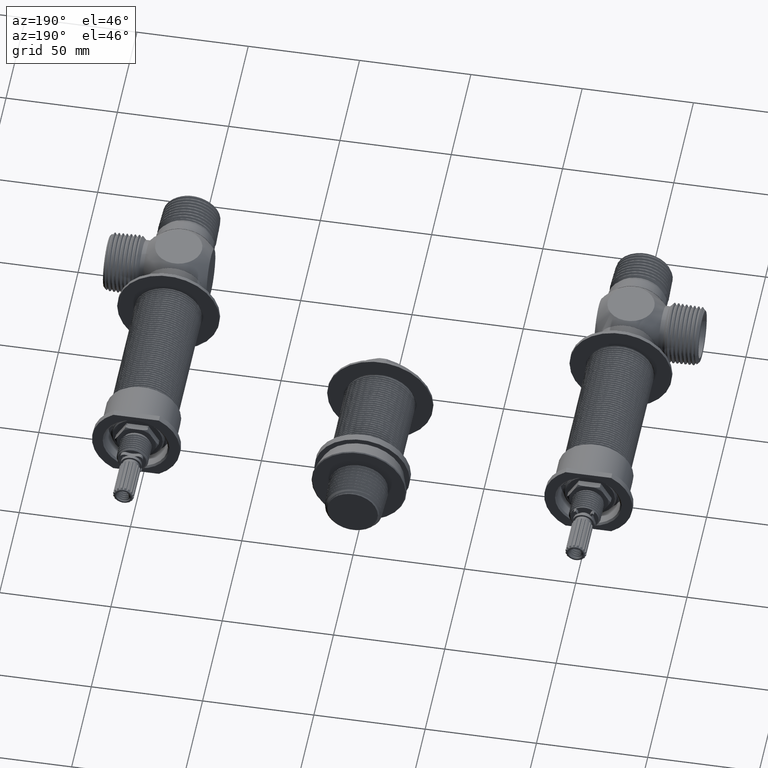
[diagram: clean part render]
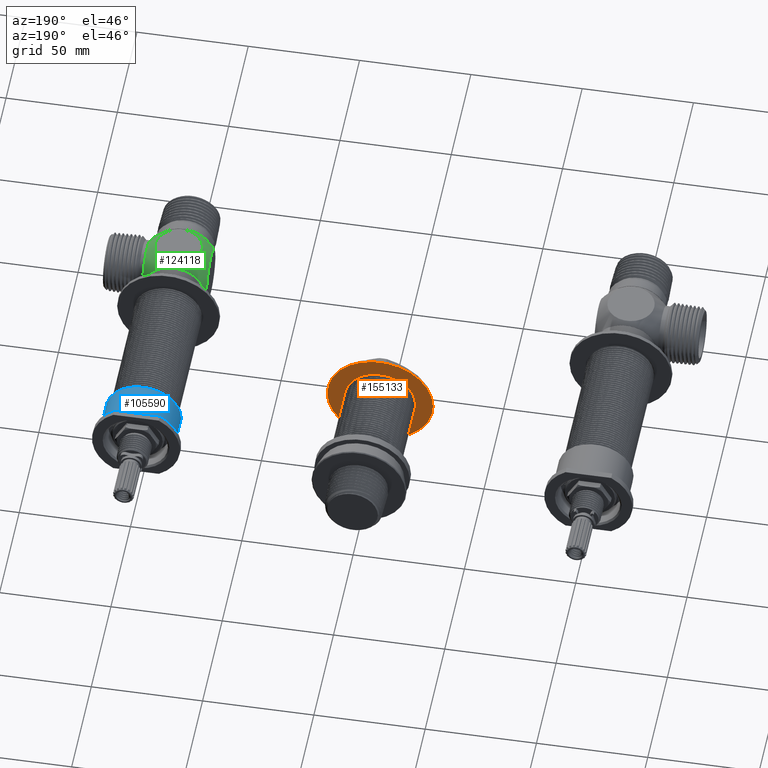
[diagram: same view with three faces highlighted in distinct colors, each labeled with its STEP entity id]
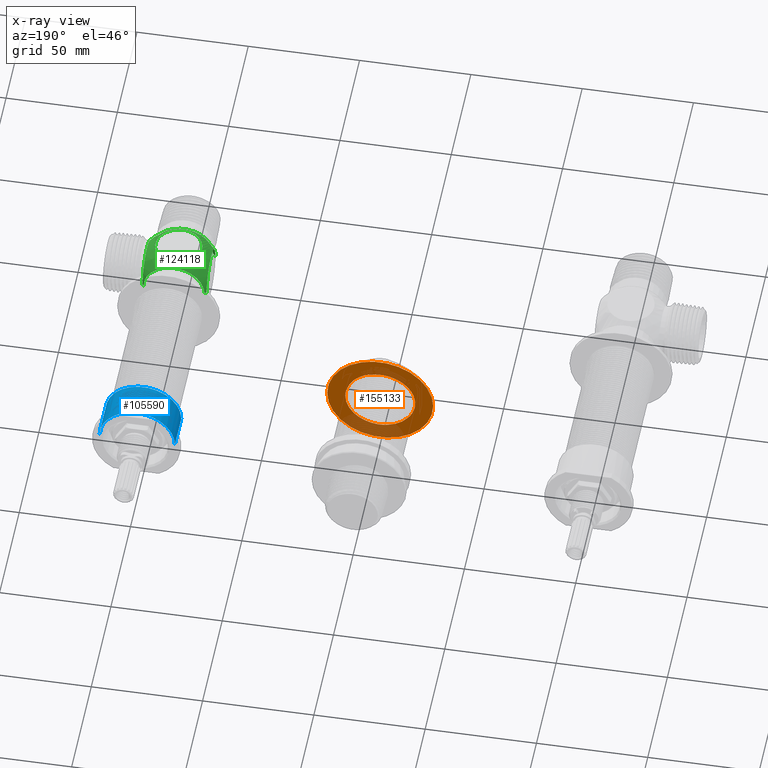
[diagram: x-ray of the same camera — body ghosted, the three highlighted faces saturated]
A machine part, auxiliary view with three faces highlighted in distinct colors.
The next image is the same camera in x-ray (body ghosted, the three faces saturated) — at least one of them is partly hidden behind the body in this view.
Their STEP definitions:

[orange] entity #155133 — the highlighted planar face has unit normal (0, -1, 0).
#137646=CARTESIAN_POINT('',(-4.859083330175E-1,-7.46013E-1,-3.712071713624E-1));
#137647=CARTESIAN_POINT('',(-4.751412382208E-1,-7.46013E-1,-3.859798271244E-1));
#137648=CARTESIAN_POINT('',(-4.523714053684E-1,-7.46013E-1,-4.144515156954E-1));
#137649=CARTESIAN_POINT('',(-4.143529678117E-1,-7.46013E-1,-4.541364416744E-1));
#137650=CARTESIAN_POINT('',(-3.729787958987E-1,-7.46013E-1,-4.902314389052E-1));
#137651=CARTESIAN_POINT('',(-3.284104997022E-1,-7.46013E-1,-5.226005475980E-1));
#137652=CARTESIAN_POINT('',(-2.810458501275E-1,-7.46013E-1,-5.509028515589E-1));
#137653=CARTESIAN_POINT('',(-2.314108280863E-1,-7.46013E-1,-5.748519647538E-1));
#137654=CARTESIAN_POINT('',(-1.795236630336E-1,-7.46013E-1,-5.943951487048E-1));
#137655=CARTESIAN_POINT('',(-1.262868187092E-1,-7.46013E-1,-6.091856018076E-1));
#137656=CARTESIAN_POINT('',(-7.165694175126E-2,-7.46013E-1,-6.192413769700E-1));
#137657=CARTESIAN_POINT('',(-1.633438377331E-2,-7.46013E-1,-6.243817370834E-1));
#137658=CARTESIAN_POINT('',(2.067917331781E-2,-7.46013E-1,-6.245242592141E-1));
#137659=CARTESIAN_POINT('',(3.924606499683E-2,-7.46013E-1,-6.237665800460E-1));
#138097=CARTESIAN_POINT('',(0.E0,-7.46013E-1,0.E0));
#138098=DIRECTION('',(0.E0,-1.E0,0.E0));
#138099=DIRECTION('',(1.E0,0.E0,0.E0));
#138100=AXIS2_PLACEMENT_3D('',#138097,#138098,#138099);
#138105=CARTESIAN_POINT('',(0.E0,-7.46013E-1,0.E0));
#138106=DIRECTION('',(0.E0,-1.E0,0.E0));
#138107=DIRECTION('',(-1.E0,0.E0,0.E0));
#138108=AXIS2_PLACEMENT_3D('',#138105,#138106,#138107);
#138113=CARTESIAN_POINT('',(-5.913617697089E-1,-7.46013E-1,2.023085698303E-1));
#138114=CARTESIAN_POINT('',(-5.969951743708E-1,-7.46013E-1,1.845743295592E-1));
#138115=CARTESIAN_POINT('',(-6.066237284385E-1,-7.46013E-1,1.487945494699E-1));
#138116=CARTESIAN_POINT('',(-6.162457812064E-1,-7.46013E-1,9.404514725157E-2));
#138117=CARTESIAN_POINT('',(-6.209442279774E-1,-7.46013E-1,3.871038897813E-2));
#138118=CARTESIAN_POINT('',(-6.206941523365E-1,-7.46013E-1,-1.670459427631E-2));
#138119=CARTESIAN_POINT('',(-6.155172195571E-1,-7.46013E-1,-7.179064845165E-2));
#138120=CARTESIAN_POINT('',(-6.054540519279E-1,-7.46013E-1,-1.261549855081E-1));
#138121=CARTESIAN_POINT('',(-5.906158967772E-1,-7.46013E-1,-1.792772848337E-1));
#138122=CARTESIAN_POINT('',(-5.711157507749E-1,-7.46013E-1,-2.308133392816E-1));
#138123=CARTESIAN_POINT('',(-5.471285807975E-1,-7.46013E-1,-2.803239025698E-1));
#138124=CARTESIAN_POINT('',(-5.188490669955E-1,-7.46013E-1,-3.274252816017E-1));
#138125=CARTESIAN_POINT('',(-4.973446125225E-1,-7.46013E-1,-3.569165808557E-1));
#138126=CARTESIAN_POINT('',(-4.859083330175E-1,-7.46013E-1,-3.712071713624E-1));
#138131=CARTESIAN_POINT('',(2.023093194179E-1,-7.46013E-1,5.913615132697E-1));
#138132=CARTESIAN_POINT('',(1.840394043551E-1,-7.46013E-1,5.976117916515E-1));
#138133=CARTESIAN_POINT('',(1.471041891737E-1,-7.46013E-1,6.083646570387E-1));
#138134=CARTESIAN_POINT('',(9.033831877665E-2,-7.46013E-1,6.193474580399E-1));
#138135=CARTESIAN_POINT('',(3.279023624529E-2,-7.46013E-1,6.250406992046E-1));
#138136=CARTESIAN_POINT('',(-2.502038462721E-2,-7.46013E-1,6.253990970025E-1));
#138137=CARTESIAN_POINT('',(-8.259679007230E-2,-7.46013E-1,6.204262380276E-1));
#138138=CARTESIAN_POINT('',(-1.395160567269E-1,-7.46013E-1,6.101530891728E-1));
#138139=CARTESIAN_POINT('',(-1.952090128973E-1,-7.46013E-1,5.946790224873E-1));
#138140=CARTESIAN_POINT('',(-2.492311250309E-1,-7.46013E-1,5.741386883787E-1));
#138141=CARTESIAN_POINT('',(-3.011710096553E-1,-7.46013E-1,5.486777935233E-1));
#138142=CARTESIAN_POINT('',(-3.504951068864E-1,-7.46013E-1,5.185584752883E-1));
#138143=CARTESIAN_POINT('',(-3.968417833221E-1,-7.46013E-1,4.840125846321E-1));
#138144=CARTESIAN_POINT('',(-4.398255653085E-1,-7.46013E-1,4.453137201926E-1));
#138145=CARTESIAN_POINT('',(-4.790224144468E-1,-7.46013E-1,4.028494242681E-1));
#138146=CARTESIAN_POINT('',(-5.141512809325E-1,-7.46013E-1,3.569306991340E-1));
#138147=CARTESIAN_POINT('',(-5.448984912902E-1,-7.46013E-1,3.079575043517E-1));
#138148=CARTESIAN_POINT('',(-5.709879042491E-1,-7.46013E-1,2.563591875991E-1));
#138149=CARTESIAN_POINT('',(-5.851116487769E-1,-7.46013E-1,2.205781002726E-1));
#138150=CARTESIAN_POINT('',(-5.913617697089E-1,-7.46013E-1,2.023085698303E-1));
#138155=CARTESIAN_POINT('',(5.910521615462E-1,-7.46013E-1,1.567132631359E-1));
#138156=CARTESIAN_POINT('',(5.867610672242E-1,-7.46013E-1,1.745067729485E-1));
#138157=CARTESIAN_POINT('',(5.766221123026E-1,-7.46013E-1,2.095691274348E-1));
#138158=CARTESIAN_POINT('',(5.567050244545E-1,-7.46013E-1,2.607893440692E-1));
#138159=CARTESIAN_POINT('',(5.322724489783E-1,-7.46013E-1,3.100530438288E-1));
#138160=CARTESIAN_POINT('',(5.034821879092E-1,-7.46013E-1,3.570351559199E-1));
#138161=CARTESIAN_POINT('',(4.705609038829E-1,-7.46013E-1,4.013259244569E-1));
#138162=CARTESIAN_POINT('',(4.337786369094E-1,-7.46013E-1,4.425491553092E-1));
#138163=CARTESIAN_POINT('',(3.934038423633E-1,-7.46013E-1,4.803903113845E-1));
#138164=CARTESIAN_POINT('',(3.497291306730E-1,-7.46013E-1,5.145482685874E-1));
#138165=CARTESIAN_POINT('',(3.031429212191E-1,-7.46013E-1,5.447078418512E-1));
#138166=CARTESIAN_POINT('',(2.539576208698E-1,-7.46013E-1,5.706473602071E-1));
#138167=CARTESIAN_POINT('',(2.197783819602E-1,-7.46013E-1,5.849516123016E-1));
#138168=CARTESIAN_POINT('',(2.023093194179E-1,-7.46013E-1,5.913615132697E-1));
#148411=CARTESIAN_POINT('',(4.690182313957E-1,-7.46013E-1,-4.130942974896E-1));
#148412=CARTESIAN_POINT('',(4.809992808009E-1,-7.46013E-1,-3.988709221599E-1));
#148413=CARTESIAN_POINT('',(5.035656692607E-1,-7.46013E-1,-3.695122441296E-1));
#148414=CARTESIAN_POINT('',(5.333531064127E-1,-7.46013E-1,-3.226868345665E-1));
#148415=CARTESIAN_POINT('',(5.588668520391E-1,-7.46013E-1,-2.733664678941E-1));
#148416=CARTESIAN_POINT('',(5.798224396407E-1,-7.46013E-1,-2.221141478747E-1));
#148417=CARTESIAN_POINT('',(5.961038013896E-1,-7.46013E-1,-1.693253427459E-1));
#148418=CARTESIAN_POINT('',(6.076263694083E-1,-7.46013E-1,-1.151963542507E-1));
#148419=CARTESIAN_POINT('',(6.142397524614E-1,-7.46013E-1,-6.060639457122E-2));
#148420=CARTESIAN_POINT('',(6.159659457369E-1,-7.46013E-1,-5.449343567657E-3));
#148421=CARTESIAN_POINT('',(6.127731545970E-1,-7.46013E-1,4.934862003057E-2));
#148422=CARTESIAN_POINT('',(6.047001643738E-1,-7.46013E-1,1.036766244095E-1));
#148423=CARTESIAN_POINT('',(5.961389569043E-1,-7.46013E-1,1.391370427101E-1));
#148424=CARTESIAN_POINT('',(5.910521615462E-1,-7.46013E-1,1.567132631359E-1));
#148708=CARTESIAN_POINT('',(0.E0,-7.46013E-1,0.E0));
#148709=DIRECTION('',(0.E0,-1.E0,0.E0));
#148710=DIRECTION('',(6.279370399493E-2,0.E0,-9.980265280736E-1));
#148711=AXIS2_PLACEMENT_3D('',#148708,#148709,#148710);
#151142=CARTESIAN_POINT('',(9.375E-1,-7.46013E-1,0.E0));
#151143=CARTESIAN_POINT('',(-9.375E-1,-7.46013E-1,0.E0));
#151144=VERTEX_POINT('',#151142);
#151145=VERTEX_POINT('',#151143);
#151150=VERTEX_POINT('',#138131);
#151151=VERTEX_POINT('',#138150);
#151221=CARTESIAN_POINT('',(3.924606499683E-2,-7.46013E-1,-6.237665800460E-1));
#151222=CARTESIAN_POINT('',(4.690182313957E-1,-7.46013E-1,-4.130942974896E-1));
#151223=VERTEX_POINT('',#151221);
#151224=VERTEX_POINT('',#151222);
#151231=VERTEX_POINT('',#148424);
#151232=VERTEX_POINT('',#137646);
#155109=CARTESIAN_POINT('',(0.E0,-7.46013E-1,0.E0));
#155110=DIRECTION('',(0.E0,-1.E0,0.E0));
#155111=DIRECTION('',(1.E0,0.E0,0.E0));
#155112=AXIS2_PLACEMENT_3D('',#155109,#155110,#155111);
#155113=PLANE('',#155112);
#155115=ORIENTED_EDGE('',*,*,#155114,.T.);
#155117=ORIENTED_EDGE('',*,*,#155116,.T.);
#155118=EDGE_LOOP('',(#155115,#155117));
#155119=FACE_OUTER_BOUND('',#155118,.F.);
#155121=ORIENTED_EDGE('',*,*,#155120,.F.);
#155122=ORIENTED_EDGE('',*,*,#155082,.F.);
#155124=ORIENTED_EDGE('',*,*,#155123,.F.);
#155126=ORIENTED_EDGE('',*,*,#155125,.F.);
#155128=ORIENTED_EDGE('',*,*,#155127,.F.);
#155130=ORIENTED_EDGE('',*,*,#155129,.F.);
#155131=EDGE_LOOP('',(#155121,#155122,#155124,#155126,#155128,#155130));
#155132=FACE_BOUND('',#155131,.F.);
#137660=B_SPLINE_CURVE_WITH_KNOTS('',3,(#137646,#137647,#137648,#137649,#137650,
#137651,#137652,#137653,#137654,#137655,#137656,#137657,#137658,#137659),
.UNSPECIFIED.,.F.,.F.,(4,1,1,1,1,1,1,1,1,1,1,4),(0.E0,9.090909090909E-2,
1.818181818182E-1,2.727272727273E-1,3.636363636364E-1,4.545454545455E-1,
5.454545454545E-1,6.363636363636E-1,7.272727272727E-1,8.181818181818E-1,
9.090909090909E-1,1.E0),.UNSPECIFIED.);
#138101=CIRCLE('',#138100,9.375E-1);
#138109=CIRCLE('',#138108,9.375E-1);
#138127=B_SPLINE_CURVE_WITH_KNOTS('',3,(#138113,#138114,#138115,#138116,#138117,
#138118,#138119,#138120,#138121,#138122,#138123,#138124,#138125,#138126),
.UNSPECIFIED.,.F.,.F.,(4,1,1,1,1,1,1,1,1,1,1,4),(0.E0,9.090909090909E-2,
1.818181818182E-1,2.727272727273E-1,3.636363636364E-1,4.545454545455E-1,
5.454545454545E-1,6.363636363636E-1,7.272727272727E-1,8.181818181818E-1,
9.090909090909E-1,1.E0),.UNSPECIFIED.);
#138151=B_SPLINE_CURVE_WITH_KNOTS('',3,(#138131,#138132,#138133,#138134,#138135,
#138136,#138137,#138138,#138139,#138140,#138141,#138142,#138143,#138144,#138145,
#138146,#138147,#138148,#138149,#138150),.UNSPECIFIED.,.F.,.F.,(4,1,1,1,1,1,1,1,
1,1,1,1,1,1,1,1,1,4),(0.E0,5.882352941176E-2,1.176470588235E-1,
1.764705882353E-1,2.352941176471E-1,2.941176470588E-1,3.529411764706E-1,
4.117647058824E-1,4.705882352941E-1,5.294117647059E-1,5.882352941176E-1,
6.470588235294E-1,7.058823529412E-1,7.647058823529E-1,8.235294117647E-1,
8.823529411765E-1,9.411764705882E-1,1.E0),.UNSPECIFIED.);
#138169=B_SPLINE_CURVE_WITH_KNOTS('',3,(#138155,#138156,#138157,#138158,#138159,
#138160,#138161,#138162,#138163,#138164,#138165,#138166,#138167,#138168),
.UNSPECIFIED.,.F.,.F.,(4,1,1,1,1,1,1,1,1,1,1,4),(0.E0,9.090909090909E-2,
1.818181818182E-1,2.727272727273E-1,3.636363636364E-1,4.545454545455E-1,
5.454545454545E-1,6.363636363636E-1,7.272727272727E-1,8.181818181818E-1,
9.090909090909E-1,1.E0),.UNSPECIFIED.);
#148425=B_SPLINE_CURVE_WITH_KNOTS('',3,(#148411,#148412,#148413,#148414,#148415,
#148416,#148417,#148418,#148419,#148420,#148421,#148422,#148423,#148424),
.UNSPECIFIED.,.F.,.F.,(4,1,1,1,1,1,1,1,1,1,1,4),(0.E0,9.090909090909E-2,
1.818181818182E-1,2.727272727273E-1,3.636363636364E-1,4.545454545455E-1,
5.454545454545E-1,6.363636363636E-1,7.272727272727E-1,8.181818181818E-1,
9.090909090909E-1,1.E0),.UNSPECIFIED.);
#148712=CIRCLE('',#148711,6.25E-1);
#155082=EDGE_CURVE('',#151232,#151223,#137660,.T.);
#155114=EDGE_CURVE('',#151144,#151145,#138101,.T.);
#155116=EDGE_CURVE('',#151145,#151144,#138109,.T.);
#155120=EDGE_CURVE('',#151223,#151224,#148712,.T.);
#155123=EDGE_CURVE('',#151151,#151232,#138127,.T.);
#155125=EDGE_CURVE('',#151150,#151151,#138151,.T.);
#155127=EDGE_CURVE('',#151231,#151150,#138169,.T.);
#155129=EDGE_CURVE('',#151224,#151231,#148425,.T.);
#155133=ADVANCED_FACE('',(#155119,#155132),#155113,.F.);

[blue] entity #105590 — the highlighted cylindrical surface (partial cylindrical patch) has radius 16.9545 mm, axis along (0, -1, 0).
#69031=CARTESIAN_POINT('',(4.E0,9.459966141732E-1,0.E0));
#69032=DIRECTION('',(0.E0,-1.E0,0.E0));
#69033=DIRECTION('',(0.E0,0.E0,1.E0));
#69034=AXIS2_PLACEMENT_3D('',#69031,#69032,#69033);
#69099=CARTESIAN_POINT('',(4.E0,9.459966141732E-1,0.E0));
#69100=DIRECTION('',(0.E0,-1.E0,0.E0));
#69101=DIRECTION('',(1.E0,0.E0,0.E0));
#69102=AXIS2_PLACEMENT_3D('',#69099,#69100,#69101);
#69114=DIRECTION('',(0.E0,1.E0,0.E0));
#69115=VECTOR('',#69114,6.4E-1);
#69116=CARTESIAN_POINT('',(3.3325E0,3.059966141732E-1,0.E0));
#69117=LINE('',#69116,#69115);
#69129=DIRECTION('',(0.E0,1.E0,0.E0));
#69130=VECTOR('',#69129,6.4E-1);
#69131=CARTESIAN_POINT('',(4.6675E0,3.059966141732E-1,0.E0));
#69132=LINE('',#69131,#69130);
#69136=CARTESIAN_POINT('',(4.E0,3.059966141732E-1,0.E0));
#69137=DIRECTION('',(0.E0,-1.E0,0.E0));
#69138=DIRECTION('',(1.E0,0.E0,0.E0));
#69139=AXIS2_PLACEMENT_3D('',#69136,#69137,#69138);
#101710=CARTESIAN_POINT('',(4.6675E0,3.059966141732E-1,0.E0));
#101711=CARTESIAN_POINT('',(4.6675E0,9.459966141732E-1,0.E0));
#101712=VERTEX_POINT('',#101710);
#101713=VERTEX_POINT('',#101711);
#101714=CARTESIAN_POINT('',(3.3325E0,3.059966141732E-1,0.E0));
#101715=CARTESIAN_POINT('',(3.3325E0,9.459966141732E-1,0.E0));
#101716=VERTEX_POINT('',#101714);
#101717=VERTEX_POINT('',#101715);
#101723=CARTESIAN_POINT('',(4.E0,9.459966141732E-1,6.675E-1));
#101725=VERTEX_POINT('',#101723);
#105577=CARTESIAN_POINT('',(4.E0,1.093496614173E0,0.E0));
#105578=DIRECTION('',(0.E0,-1.E0,0.E0));
#105579=DIRECTION('',(-1.E0,0.E0,0.E0));
#105580=AXIS2_PLACEMENT_3D('',#105577,#105578,#105579);
#105581=CYLINDRICAL_SURFACE('',#105580,6.675E-1);
#105582=ORIENTED_EDGE('',*,*,#105540,.F.);
#105583=ORIENTED_EDGE('',*,*,#105565,.F.);
#105585=ORIENTED_EDGE('',*,*,#105584,.T.);
#105586=ORIENTED_EDGE('',*,*,#105561,.T.);
#105587=ORIENTED_EDGE('',*,*,#105474,.F.);
#105588=EDGE_LOOP('',(#105582,#105583,#105585,#105586,#105587));
#105589=FACE_OUTER_BOUND('',#105588,.F.);
#69035=CIRCLE('',#69034,6.675E-1);
#69103=CIRCLE('',#69102,6.675E-1);
#69140=CIRCLE('',#69139,6.675E-1);
#105474=EDGE_CURVE('',#101725,#101717,#69035,.T.);
#105540=EDGE_CURVE('',#101713,#101725,#69103,.T.);
#105561=EDGE_CURVE('',#101716,#101717,#69117,.T.);
#105565=EDGE_CURVE('',#101712,#101713,#69132,.T.);
#105584=EDGE_CURVE('',#101712,#101716,#69140,.T.);
#105590=ADVANCED_FACE('',(#105589),#105581,.T.);

[green] entity #124118 — the highlighted spherical surface has radius 18.3 mm.
#89460=CARTESIAN_POINT('',(4.E0,-2.746680551181E0,0.E0));
#89461=DIRECTION('',(0.E0,1.E0,0.E0));
#89462=DIRECTION('',(-1.E0,0.E0,0.E0));
#89463=AXIS2_PLACEMENT_3D('',#89460,#89461,#89462);
#89532=CARTESIAN_POINT('',(4.E0,-3.225027007874E0,0.E0));
#89533=DIRECTION('',(0.E0,0.E0,1.E0));
#89534=DIRECTION('',(-7.923497267762E-1,-6.100671360413E-1,0.E0));
#89535=AXIS2_PLACEMENT_3D('',#89532,#89533,#89534);
#89540=CARTESIAN_POINT('',(3.429133858268E0,-3.225027007874E0,0.E0));
#89541=DIRECTION('',(1.E0,0.E0,0.E0));
#89542=DIRECTION('',(0.E0,1.E0,0.E0));
#89543=AXIS2_PLACEMENT_3D('',#89540,#89541,#89542);
#89548=CARTESIAN_POINT('',(4.E0,-3.225027007874E0,0.E0));
#89549=DIRECTION('',(0.E0,0.E0,1.E0));
#89550=DIRECTION('',(-7.477907980627E-1,6.639344262295E-1,0.E0));
#89551=AXIS2_PLACEMENT_3D('',#89548,#89549,#89550);
#89556=CARTESIAN_POINT('',(4.E0,-3.225027007874E0,0.E0));
#89557=DIRECTION('',(0.E0,0.E0,1.E0));
#89558=DIRECTION('',(7.778780174546E-1,6.284153005465E-1,0.E0));
#89559=AXIS2_PLACEMENT_3D('',#89556,#89557,#89558);
#89564=CARTESIAN_POINT('',(4.560439673993E0,-3.225027007874E0,0.E0));
#89565=DIRECTION('',(-1.E0,0.E0,0.E0));
#89566=DIRECTION('',(0.E0,-9.708024860489E-1,2.398802473763E-1));
#89567=AXIS2_PLACEMENT_3D('',#89564,#89565,#89566);
#89572=CARTESIAN_POINT('',(4.560439673993E0,-3.225027007874E0,0.E0));
#89573=DIRECTION('',(-1.E0,0.E0,0.E0));
#89574=DIRECTION('',(0.E0,-1.E0,0.E0));
#89575=AXIS2_PLACEMENT_3D('',#89572,#89573,#89574);
#89580=CARTESIAN_POINT('',(4.E0,-3.225027007874E0,0.E0));
#89581=DIRECTION('',(0.E0,0.E0,1.E0));
#89582=DIRECTION('',(7.199855340765E-1,-6.939890710383E-1,0.E0));
#89583=AXIS2_PLACEMENT_3D('',#89580,#89581,#89582);
#89588=CARTESIAN_POINT('',(4.E0,-3.225027007874E0,5.905511811026E-1));
#89589=DIRECTION('',(0.E0,0.E0,-1.E0));
#89590=DIRECTION('',(-1.E0,0.E0,0.E0));
#89591=AXIS2_PLACEMENT_3D('',#89588,#89589,#89590);
#89596=CARTESIAN_POINT('',(4.E0,-3.225027007874E0,5.905511811026E-1));
#89597=DIRECTION('',(0.E0,0.E0,-1.E0));
#89598=DIRECTION('',(1.E0,0.E0,0.E0));
#89599=AXIS2_PLACEMENT_3D('',#89596,#89597,#89598);
#89620=CARTESIAN_POINT('',(4.E0,-3.725027007874E0,0.E0));
#89621=DIRECTION('',(0.E0,-1.E0,0.E0));
#89622=DIRECTION('',(1.E0,0.E0,0.E0));
#89623=AXIS2_PLACEMENT_3D('',#89620,#89621,#89622);
#100716=CARTESIAN_POINT('',(3.461237338404E0,-2.746680551181E0,0.E0));
#100717=CARTESIAN_POINT('',(4.538762661596E0,-2.746680551181E0,0.E0));
#100718=VERTEX_POINT('',#100716);
#100719=VERTEX_POINT('',#100717);
#100720=CARTESIAN_POINT('',(3.429133858268E0,-3.664563566518E0,0.E0));
#100721=CARTESIAN_POINT('',(3.429133858268E0,-2.785490449230E0,0.E0));
#100722=VERTEX_POINT('',#100720);
#100723=VERTEX_POINT('',#100721);
#100724=CARTESIAN_POINT('',(3.481270264819E0,-3.725027007874E0,0.E0));
#100725=VERTEX_POINT('',#100724);
#100726=CARTESIAN_POINT('',(4.560439673993E0,-2.772271102362E0,0.E0));
#100727=VERTEX_POINT('',#100726);
#100728=CARTESIAN_POINT('',(4.560439673993E0,-3.664563566518E0,
1.086071986152E-1));
#100729=VERTEX_POINT('',#100728);
#100730=CARTESIAN_POINT('',(4.560439673993E0,-3.677782913386E0,0.E0));
#100731=VERTEX_POINT('',#100730);
#100732=CARTESIAN_POINT('',(4.518729735181E0,-3.725027007874E0,0.E0));
#100733=VERTEX_POINT('',#100732);
#100734=CARTESIAN_POINT('',(4.412710359283E0,-3.225027007874E0,
5.905511811026E-1));
#100735=CARTESIAN_POINT('',(3.587289640717E0,-3.225027007874E0,
5.905511811026E-1));
#100736=VERTEX_POINT('',#100734);
#100737=VERTEX_POINT('',#100735);
#124092=CARTESIAN_POINT('',(4.E0,-3.225027007874E0,0.E0));
#124093=DIRECTION('',(0.E0,-1.E0,0.E0));
#124094=DIRECTION('',(-1.E0,0.E0,0.E0));
#124095=AXIS2_PLACEMENT_3D('',#124092,#124093,#124094);
#124096=SPHERICAL_SURFACE('',#124095,7.204724409449E-1);
#124098=ORIENTED_EDGE('',*,*,#124097,.T.);
#124099=ORIENTED_EDGE('',*,*,#124061,.F.);
#124101=ORIENTED_EDGE('',*,*,#124100,.F.);
#124102=ORIENTED_EDGE('',*,*,#124057,.F.);
#124103=ORIENTED_EDGE('',*,*,#124030,.T.);
#124104=ORIENTED_EDGE('',*,*,#124069,.F.);
#124106=ORIENTED_EDGE('',*,*,#124105,.F.);
#124108=ORIENTED_EDGE('',*,*,#124107,.F.);
#124109=ORIENTED_EDGE('',*,*,#124065,.F.);
#124110=EDGE_LOOP('',(#124098,#124099,#124101,#124102,#124103,#124104,#124106,
#124108,#124109));
#124111=FACE_OUTER_BOUND('',#124110,.F.);
#124113=ORIENTED_EDGE('',*,*,#124112,.F.);
#124115=ORIENTED_EDGE('',*,*,#124114,.F.);
#124116=EDGE_LOOP('',(#124113,#124115));
#124117=FACE_BOUND('',#124116,.F.);
#89464=CIRCLE('',#89463,5.387626615964E-1);
#89536=CIRCLE('',#89535,7.204724409449E-1);
#89544=CIRCLE('',#89543,4.395365586439E-1);
#89552=CIRCLE('',#89551,7.204724409449E-1);
#89560=CIRCLE('',#89559,7.204724409449E-1);
#89568=CIRCLE('',#89567,4.527559055118E-1);
#89576=CIRCLE('',#89575,4.527559055118E-1);
#89584=CIRCLE('',#89583,7.204724409449E-1);
#89592=CIRCLE('',#89591,4.127103592829E-1);
#89600=CIRCLE('',#89599,4.127103592829E-1);
#89624=CIRCLE('',#89623,5.187297351811E-1);
#124030=EDGE_CURVE('',#100718,#100719,#89464,.T.);
#124057=EDGE_CURVE('',#100718,#100723,#89552,.T.);
#124061=EDGE_CURVE('',#100722,#100725,#89536,.T.);
#124065=EDGE_CURVE('',#100733,#100731,#89584,.T.);
#124069=EDGE_CURVE('',#100727,#100719,#89560,.T.);
#124097=EDGE_CURVE('',#100733,#100725,#89624,.T.);
#124100=EDGE_CURVE('',#100723,#100722,#89544,.T.);
#124105=EDGE_CURVE('',#100729,#100727,#89568,.T.);
#124107=EDGE_CURVE('',#100731,#100729,#89576,.T.);
#124112=EDGE_CURVE('',#100737,#100736,#89592,.T.);
#124114=EDGE_CURVE('',#100736,#100737,#89600,.T.);
#124118=ADVANCED_FACE('',(#124111,#124117),#124096,.T.);